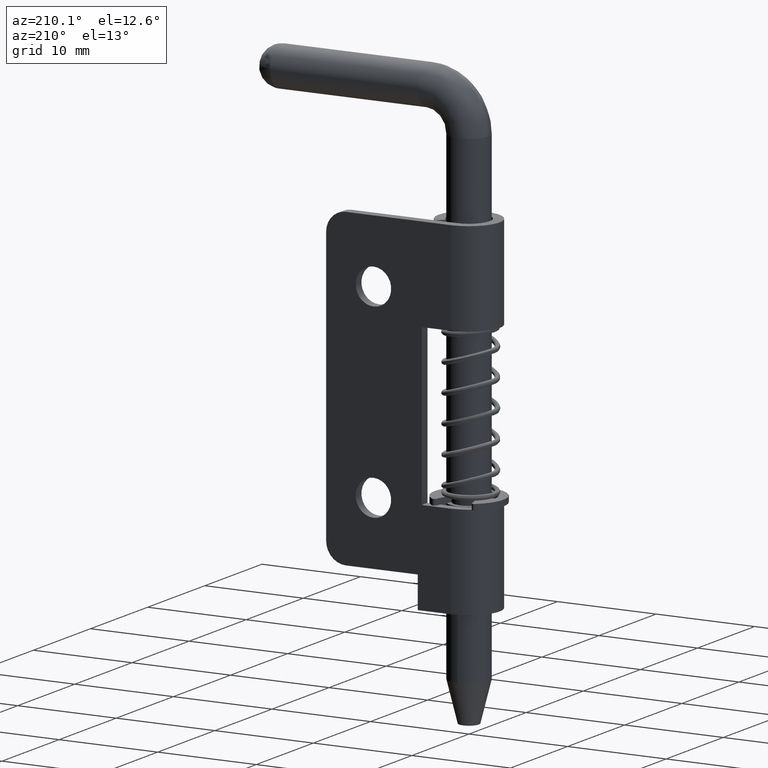
[diagram: clean part render]
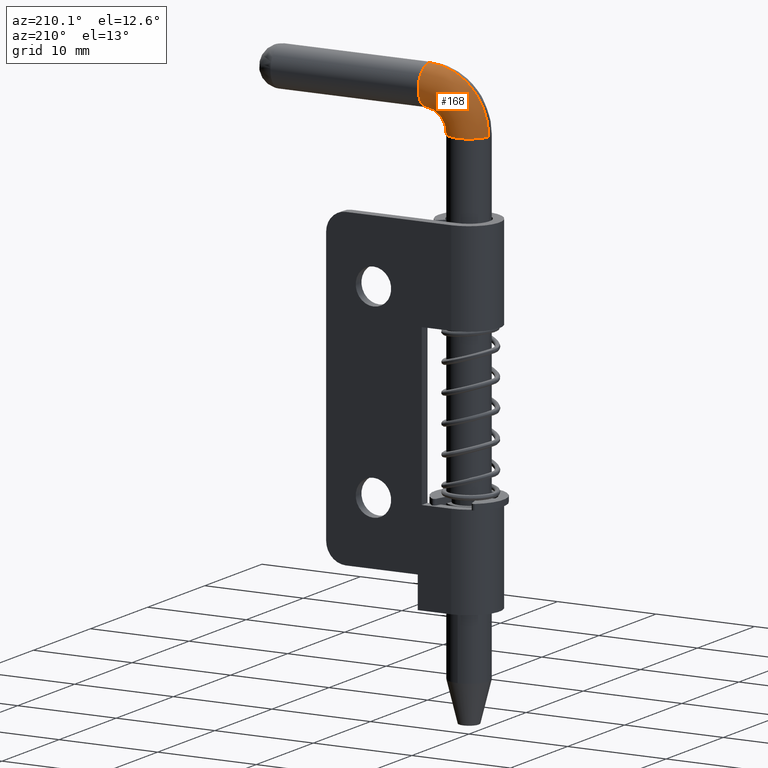
[diagram: same view with one face highlighted and labeled with its STEP entity id]
A machine part, auxiliary view. The second image highlights one B-rep face of the part: STEP entity #168.
In plain terms, the highlighted face is a freeform B-spline surface patch.
Its self-contained STEP definition (entity closure, byte-faithful):
#168=ADVANCED_FACE('',(#427),#426,.T.);
#426=( BOUNDED_SURFACE() B_SPLINE_SURFACE( 3,3,((#1237,#1238,#1239,#1240,#1241),(#1242,#1243,#1244,#1245,#1246),(#1247,#1248,#1249,#1250,#1251),(#1252,#1253,#1254,#1255,#1256),(#1257,#1258,#1259,#1260,#1261),(#1262,#1263,#1264,#1265,#1266),(#1267,#1268,#1269,#1270,#1271)), .UNSPECIFIED.,.F.,.F.,.F.) B_SPLINE_SURFACE_WITH_KNOTS((4,1,1,1,4),(4,1,4),(0.00000000000E+00,2.50000000000E-01,5.00000000000E-01,7.50000000000E-01,1.00000000000E+00),(0.00000000000E+00,5.00000000000E-01,1.00000000000E+00), .UNSPECIFIED. ) GEOMETRIC_REPRESENTATION_ITEM() RATIONAL_B_SPLINE_SURFACE(((1.00000000000E+00,1.00000000000E+00,1.00000000000E+00,1.00000000000E+00,1.00000000000E+00),(1.00000000000E+00,1.00000000000E+00,1.00000000000E+00,1.00000000000E+00,1.00000000000E+00),(1.00000000000E+00,1.00000000000E+00,1.00000000000E+00,1.00000000000E+00,1.00000000000E+00),(1.00000000000E+00,1.00000000000E+00,1.00000000000E+00,1.00000000000E+00,1.00000000000E+00),(1.00000000000E+00,1.00000000000E+00,1.00000000000E+00,1.00000000000E+00,1.00000000000E+00),(1.00000000000E+00,1.00000000000E+00,1.00000000000E+00,1.00000000000E+00,1.00000000000E+00),(1.00000000000E+00,1.00000000000E+00,1.00000000000E+00,1.00000000000E+00,1.00000000000E+00))) REPRESENTATION_ITEM('') SURFACE() );
#427=FACE_OUTER_BOUND('',#1272,.T.);
#1237=CARTESIAN_POINT('',(4.00000000000E+00,8.67084182232E-11,3.91000000001E+01));
#1238=CARTESIAN_POINT('',(2.42736770303E+00,8.67084182232E-11,3.91109291025E+01));
#1239=CARTESIAN_POINT('',(-6.95859217549E-01,8.67084182232E-11,3.77958592176E+01));
#1240=CARTESIAN_POINT('',(-2.01092910241E+00,8.67084182232E-11,3.46726322971E+01));
#1241=CARTESIAN_POINT('',(-2.00000000000E+00,8.67084182232E-11,3.31000000001E+01));
#1242=CARTESIAN_POINT('',(4.00000000000E+00,5.23598821731E-01,3.91000000001E+01));
#1243=CARTESIAN_POINT('',(2.42736770303E+00,5.23598821731E-01,3.91109291025E+01));
#1244=CARTESIAN_POINT('',(-6.95859217549E-01,5.23598821731E-01,3.77958592176E+01));
#1245=CARTESIAN_POINT('',(-2.01092910241E+00,5.23598821731E-01,3.46726322971E+01));
#1246=CARTESIAN_POINT('',(-2.00000000000E+00,5.23598821731E-01,3.31000000001E+01));
#1247=CARTESIAN_POINT('',(4.00000000000E+00,1.56662771401E+00,3.86672232499E+01));
#1248=CARTESIAN_POINT('',(2.54080081882E+00,1.56662771401E+00,3.86773640421E+01));
#1249=CARTESIAN_POINT('',(-3.57149435607E-01,1.56662771401E+00,3.74571494357E+01));
#1250=CARTESIAN_POINT('',(-1.57736404196E+00,1.56662771401E+00,3.45591991813E+01));
#1251=CARTESIAN_POINT('',(-1.56722324978E+00,1.56662771401E+00,3.31000000001E+01));
#1252=CARTESIAN_POINT('',(4.00000000000E+00,2.21668614313E+00,3.71000000001E+01));
#1253=CARTESIAN_POINT('',(2.95157846869E+00,2.21668614313E+00,3.71072860684E+01));
#1254=CARTESIAN_POINT('',(8.69427188301E-01,2.21668614313E+00,3.62305728118E+01));
#1255=CARTESIAN_POINT('',(-7.28606827365E-03,2.21668614313E+00,3.41484215314E+01));
#1256=CARTESIAN_POINT('',(5.35599342655E-13,2.21668614313E+00,3.31000000001E+01));
#1257=CARTESIAN_POINT('',(4.00000000000E+00,1.56662771401E+00,3.55327767503E+01));
#1258=CARTESIAN_POINT('',(3.36235611855E+00,1.56662771401E+00,3.55372080947E+01));
#1259=CARTESIAN_POINT('',(2.09600381221E+00,1.56662771401E+00,3.50039961879E+01));
#1260=CARTESIAN_POINT('',(1.56279190541E+00,1.56662771401E+00,3.37376438816E+01));
#1261=CARTESIAN_POINT('',(1.56722324978E+00,1.56662771401E+00,3.31000000001E+01));
#1262=CARTESIAN_POINT('',(4.00000000000E+00,5.23598821731E-01,3.51000000001E+01));
#1263=CARTESIAN_POINT('',(3.47578923434E+00,5.23598821731E-01,3.51036430342E+01));
#1264=CARTESIAN_POINT('',(2.43471359415E+00,5.23598821731E-01,3.46652864059E+01));
#1265=CARTESIAN_POINT('',(1.99635696586E+00,5.23598821731E-01,3.36242107658E+01));
#1266=CARTESIAN_POINT('',(2.00000000000E+00,5.23598821731E-01,3.31000000001E+01));
#1267=CARTESIAN_POINT('',(4.00000000000E+00,8.67086631445E-11,3.51000000001E+01));
#1268=CARTESIAN_POINT('',(3.47578923434E+00,8.67086631445E-11,3.51036430342E+01));
#1269=CARTESIAN_POINT('',(2.43471359415E+00,8.67086631445E-11,3.46652864059E+01));
#1270=CARTESIAN_POINT('',(1.99635696586E+00,8.67086631445E-11,3.36242107658E+01));
#1271=CARTESIAN_POINT('',(2.00000000000E+00,8.67086631445E-11,3.31000000001E+01));
#1272=EDGE_LOOP('',(#3203,#3204,#3205,#3206));
#3203=ORIENTED_EDGE('',*,*,#3607,.F.);
#3204=ORIENTED_EDGE('',*,*,#3604,.T.);
#3205=ORIENTED_EDGE('',*,*,#3608,.T.);
#3206=ORIENTED_EDGE('',*,*,#3606,.F.);
#3604=EDGE_CURVE('',#4231,#4224,#4232,.T.);
#3606=EDGE_CURVE('',#4238,#4223,#4245,.T.);
#3607=EDGE_CURVE('',#4231,#4238,#4251,.T.);
#3608=EDGE_CURVE('',#4224,#4223,#4257,.T.);
#4223=VERTEX_POINT('',#5503);
#4224=VERTEX_POINT('',#5504);
#4231=VERTEX_POINT('',#5509);
#4232=CIRCLE('',#5513,2.00000000000E+00);
#4238=VERTEX_POINT('',#5514);
#4245=(BOUNDED_CURVE() B_SPLINE_CURVE(3,(#5519,#5520,#5521,#5522,#5523),.UNSPECIFIED.,.F.,.F.) B_SPLINE_CURVE_WITH_KNOTS((4,1,4),(3.14159265359E+00,3.92699081700E+00,4.71238898040E+00),.UNSPECIFIED.) CURVE() GEOMETRIC_REPRESENTATION_ITEM() RATIONAL_B_SPLINE_CURVE((1.00000000000E+00,1.00000000000E+00,1.00000000000E+00,1.00000000000E+00,1.00000000000E+00)) REPRESENTATION_ITEM('') );
#4251=CIRCLE('',#5527,2.00000000000E+00);
#4257=CIRCLE('',#5531,2.00000000000E+00);
#5503=CARTESIAN_POINT('',(-2.00000000000E+00,8.67295124607E-11,3.31000000001E+01));
#5504=CARTESIAN_POINT('',(2.00000000000E+00,8.67292349049E-11,3.31000000001E+01));
#5509=CARTESIAN_POINT('',(4.00000000000E+00,8.67084182232E-11,3.51000000001E+01));
#5510=CARTESIAN_POINT('',(4.00000000000E+00,8.67081733020E-11,3.31000000001E+01));
#5511=DIRECTION('',(0.00000000000E+00,-1.00000000000E+00,0.00000000000E+00));
#5512=DIRECTION('',(-0.00000000000E+00,-0.00000000000E+00,-1.00000000000E+00));
#5513=AXIS2_PLACEMENT_3D('',#5510,#5511,#5512);
#5514=CARTESIAN_POINT('',(4.00000000000E+00,8.67086402678E-11,3.91000000001E+01));
#5519=CARTESIAN_POINT('',(3.99999999999E+00,8.67084182232E-11,3.91000000001E+01));
#5520=CARTESIAN_POINT('',(2.43613412472E+00,8.67084182232E-11,3.91145779070E+01));
#5521=CARTESIAN_POINT('',(-6.96059483218E-01,8.67084182232E-11,3.77960594833E+01));
#5522=CARTESIAN_POINT('',(-2.01457790693E+00,8.67084182232E-11,3.46638658753E+01));
#5523=CARTESIAN_POINT('',(-2.00000000000E+00,8.67084182232E-11,3.31000000000E+01));
#5524=CARTESIAN_POINT('',(4.00000000000E+00,8.67084182232E-11,3.71000000001E+01));
#5525=DIRECTION('',(1.00000000000E+00,0.00000000000E+00,0.00000000000E+00));
#5526=DIRECTION('',(-0.00000000000E+00,-0.00000000000E+00,1.00000000000E+00));
#5527=AXIS2_PLACEMENT_3D('',#5524,#5525,#5526);
#5528=CARTESIAN_POINT('',(0.00000000000E+00,8.67292349049E-11,3.31000000001E+01));
#5529=DIRECTION('',(-0.00000000000E+00,0.00000000000E+00,1.00000000000E+00));
#5530=DIRECTION('',(-1.00000000000E+00,-0.00000000000E+00,-0.00000000000E+00));
#5531=AXIS2_PLACEMENT_3D('',#5528,#5529,#5530);